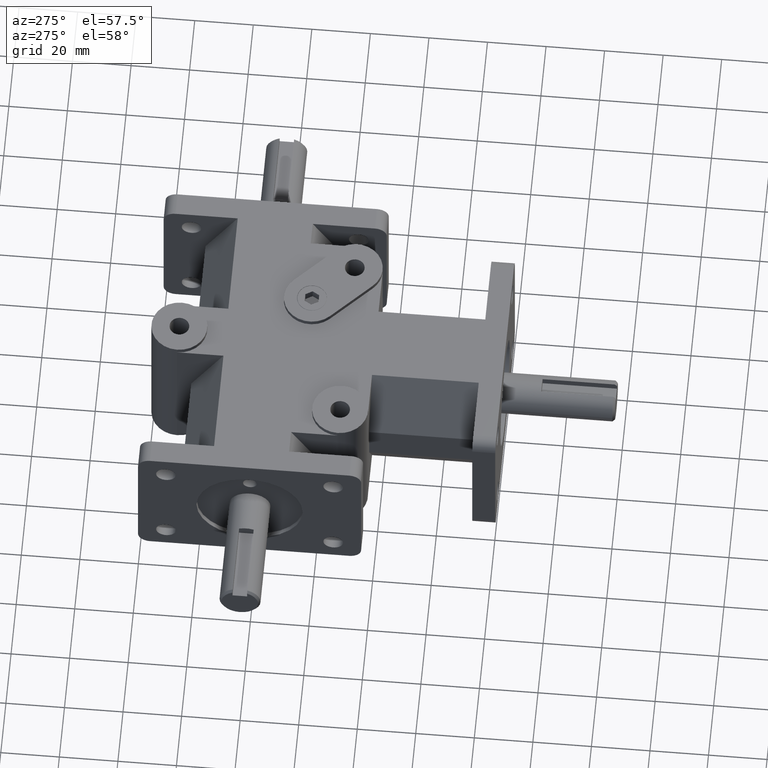
[diagram: clean part render]
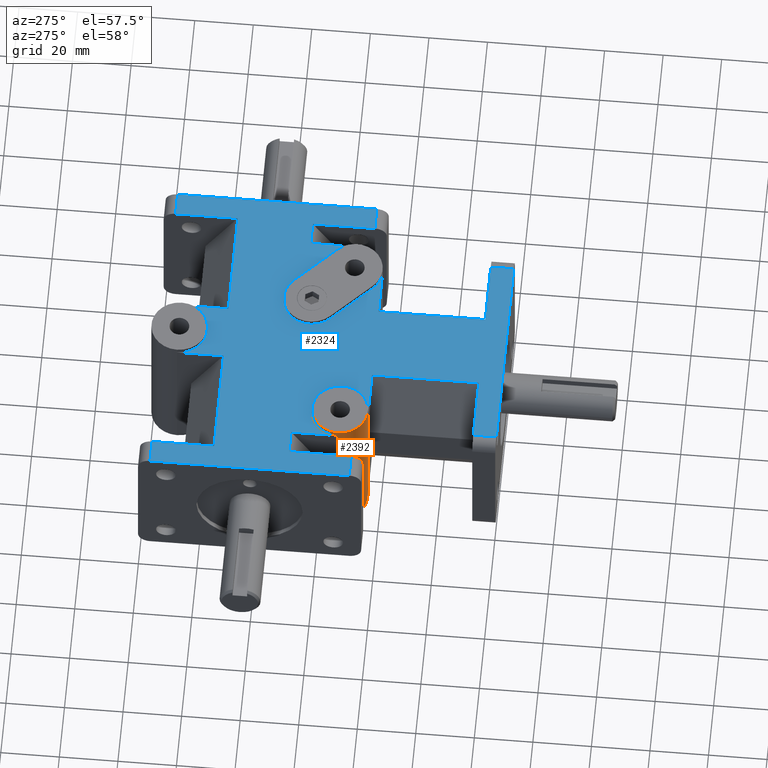
[diagram: same view with the hole feature highlighted: cylindrical wall and planar end face, labeled with their STEP entity ids]
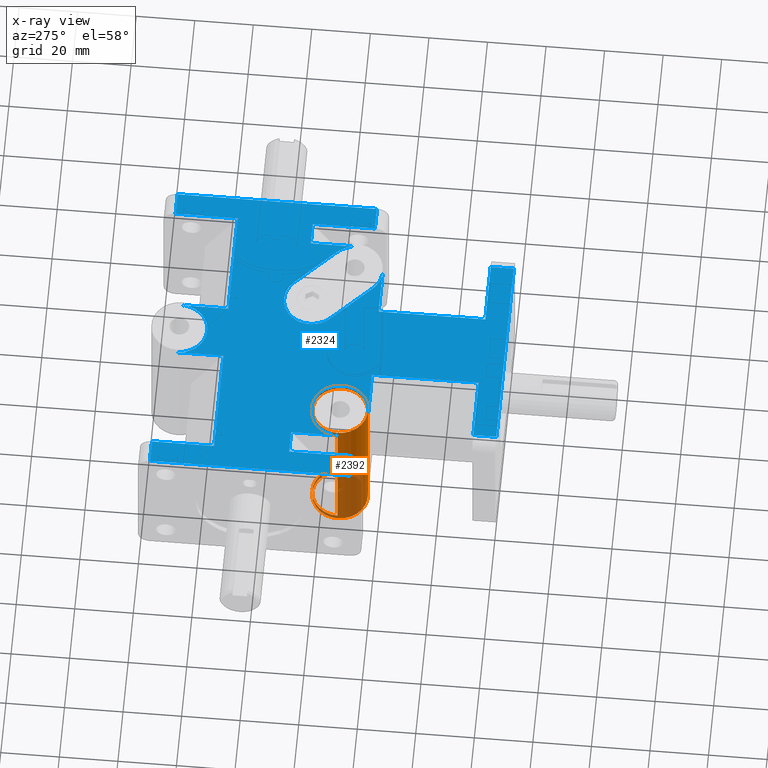
[diagram: x-ray of the same camera — body ghosted, the hole faces saturated]
A machine part, auxiliary view. The highlighted faces form one hole feature of diameter 19.05 mm: the cylindrical wall (entity #2392, orange) and its adjacent planar end face (entity #2324, blue) — they share a circular edge in the B-rep.
The next image is the same camera in x-ray (body ghosted, the hole faces saturated) — the bore reads through the body.
Wall:
#273=FACE_OUTER_BOUND('',#441,.T.);
#441=EDGE_LOOP('',(#2184,#2185,#2186,#2187,#2188,#2189,#2190,#2191,#2192,
#2193));
#667=LINE('',#4025,#889);
#668=LINE('',#4027,#890);
#669=LINE('',#4028,#891);
#670=LINE('',#4029,#892);
#889=VECTOR('',#3322,1.);
#890=VECTOR('',#3325,9.525);
#891=VECTOR('',#3326,1.);
#892=VECTOR('',#3327,9.525);
#965=CIRCLE('',#2537,9.525);
#970=CIRCLE('',#2544,9.525);
#998=CIRCLE('',#2616,9.525);
#999=CIRCLE('',#2618,9.525);
#1143=VERTEX_POINT('',#3732);
#1144=VERTEX_POINT('',#3734);
#1151=VERTEX_POINT('',#3754);
#1152=VERTEX_POINT('',#3756);
#1219=VERTEX_POINT('',#3981);
#1220=VERTEX_POINT('',#3984);
#1405=EDGE_CURVE('',#1143,#1144,#965,.T.);
#1417=EDGE_CURVE('',#1151,#1152,#970,.T.);
#1531=EDGE_CURVE('',#1219,#1219,#998,.T.);
#1532=EDGE_CURVE('',#1220,#1220,#999,.T.);
#1550=EDGE_CURVE('',#1143,#1152,#667,.T.);
#1551=EDGE_CURVE('',#1220,#1152,#668,.T.);
#1552=EDGE_CURVE('',#1144,#1151,#669,.T.);
#1553=EDGE_CURVE('',#1143,#1219,#670,.T.);
#2184=ORIENTED_EDGE('',*,*,#1532,.T.);
#2185=ORIENTED_EDGE('',*,*,#1551,.T.);
#2186=ORIENTED_EDGE('',*,*,#1417,.F.);
#2187=ORIENTED_EDGE('',*,*,#1552,.F.);
#2188=ORIENTED_EDGE('',*,*,#1405,.F.);
#2189=ORIENTED_EDGE('',*,*,#1553,.T.);
#2190=ORIENTED_EDGE('',*,*,#1531,.T.);
#2191=ORIENTED_EDGE('',*,*,#1553,.F.);
#2192=ORIENTED_EDGE('',*,*,#1550,.T.);
#2193=ORIENTED_EDGE('',*,*,#1551,.F.);
#2268=CYLINDRICAL_SURFACE('',#2641,9.525);
#2392=ADVANCED_FACE('',(#273),#2268,.T.);
#2537=AXIS2_PLACEMENT_3D('',#3735,#3006,#3007);
#2544=AXIS2_PLACEMENT_3D('',#3757,#3027,#3028);
#2616=AXIS2_PLACEMENT_3D('',#3982,#3257,#3258);
#2618=AXIS2_PLACEMENT_3D('',#3985,#3261,#3262);
#2641=AXIS2_PLACEMENT_3D('',#4026,#3323,#3324);
#3006=DIRECTION('center_axis',(0.,0.,-1.));
#3007=DIRECTION('ref_axis',(1.,0.,0.));
#3027=DIRECTION('center_axis',(0.,0.,1.));
#3028=DIRECTION('ref_axis',(1.,0.,0.));
#3257=DIRECTION('center_axis',(0.,0.,-1.));
#3258=DIRECTION('ref_axis',(1.,0.,0.));
#3261=DIRECTION('center_axis',(0.,0.,1.));
#3262=DIRECTION('ref_axis',(1.,0.,0.));
#3322=DIRECTION('',(0.,0.,-1.));
#3323=DIRECTION('center_axis',(0.,0.,-1.));
#3324=DIRECTION('ref_axis',(1.,0.,0.));
#3325=DIRECTION('',(0.,0.,1.));
#3326=DIRECTION('',(0.,0.,-1.));
#3327=DIRECTION('',(0.,0.,1.));
#3732=CARTESIAN_POINT('',(-38.227,53.848,25.4));
#3734=CARTESIAN_POINT('',(-28.702,44.323,25.4));
#3735=CARTESIAN_POINT('Origin',(-28.702,53.848,25.4));
#3754=CARTESIAN_POINT('',(-28.702,44.323,-25.4));
#3756=CARTESIAN_POINT('',(-38.227,53.848,-25.4));
#3757=CARTESIAN_POINT('Origin',(-28.702,53.848,-25.4));
#3981=CARTESIAN_POINT('',(-38.227,53.848,27.051));
#3982=CARTESIAN_POINT('Origin',(-28.702,53.848,27.051));
#3984=CARTESIAN_POINT('',(-38.227,53.848,-27.051));
#3985=CARTESIAN_POINT('Origin',(-28.702,53.848,-27.051));
#4025=CARTESIAN_POINT('',(-38.227,53.848,0.));
#4026=CARTESIAN_POINT('Origin',(-28.702,53.848,0.));
#4027=CARTESIAN_POINT('',(-38.227,53.848,0.));
#4028=CARTESIAN_POINT('',(-28.702,44.323,0.));
#4029=CARTESIAN_POINT('',(-38.227,53.848,0.));
End face:
#97=PLANE('',#2532);
#205=FACE_OUTER_BOUND('',#351,.T.);
#351=EDGE_LOOP('',(#1804,#1805,#1806,#1807,#1808,#1809,#1810,#1811,#1812,
#1813,#1814,#1815,#1816,#1817,#1818,#1819,#1820,#1821,#1822,#1823,#1824,
#1825,#1826,#1827,#1828,#1829,#1830,#1831,#1832,#1833,#1834,#1835,#1836,
#1837));
#494=LINE('',#3533,#716);
#501=LINE('',#3563,#723);
#502=LINE('',#3569,#724);
#509=LINE('',#3599,#731);
#512=LINE('',#3614,#734);
#515=LINE('',#3626,#737);
#518=LINE('',#3638,#740);
#528=LINE('',#3660,#750);
#530=LINE('',#3668,#752);
#540=LINE('',#3690,#762);
#542=LINE('',#3697,#764);
#543=LINE('',#3699,#765);
#544=LINE('',#3701,#766);
#545=LINE('',#3705,#767);
#546=LINE('',#3709,#768);
#547=LINE('',#3713,#769);
#548=LINE('',#3714,#770);
#549=LINE('',#3715,#771);
#550=LINE('',#3717,#772);
#551=LINE('',#3719,#773);
#552=LINE('',#3723,#774);
#553=LINE('',#3725,#775);
#554=LINE('',#3726,#776);
#555=LINE('',#3727,#777);
#556=LINE('',#3729,#778);
#557=LINE('',#3731,#779);
#558=LINE('',#3733,#780);
#559=LINE('',#3737,#781);
#560=LINE('',#3738,#782);
#716=VECTOR('',#2839,1.);
#723=VECTOR('',#2866,1.);
#724=VECTOR('',#2871,1.);
#731=VECTOR('',#2898,1.);
#734=VECTOR('',#2911,1.);
#737=VECTOR('',#2922,1.);
#740=VECTOR('',#2933,1.);
#750=VECTOR('',#2949,1.);
#752=VECTOR('',#2957,1.);
#762=VECTOR('',#2973,1.);
#764=VECTOR('',#2981,1.);
#765=VECTOR('',#2982,1.);
#766=VECTOR('',#2983,1.);
#767=VECTOR('',#2986,1.);
#768=VECTOR('',#2989,1.);
#769=VECTOR('',#2992,1.);
#770=VECTOR('',#2993,1.);
#771=VECTOR('',#2994,1.);
#772=VECTOR('',#2995,1.);
#773=VECTOR('',#2996,1.);
#774=VECTOR('',#2999,1.);
#775=VECTOR('',#3000,1.);
#776=VECTOR('',#3001,1.);
#777=VECTOR('',#3002,1.);
#778=VECTOR('',#3003,1.);
#779=VECTOR('',#3004,1.);
#780=VECTOR('',#3005,1.);
#781=VECTOR('',#3008,1.);
#782=VECTOR('',#3009,1.);
#961=CIRCLE('',#2533,9.525);
#962=CIRCLE('',#2534,9.525);
#963=CIRCLE('',#2535,9.525);
#964=CIRCLE('',#2536,9.525);
#965=CIRCLE('',#2537,9.525);
#1057=VERTEX_POINT('',#3530);
#1058=VERTEX_POINT('',#3532);
#1068=VERTEX_POINT('',#3556);
#1071=VERTEX_POINT('',#3561);
#1073=VERTEX_POINT('',#3566);
#1074=VERTEX_POINT('',#3568);
#1084=VERTEX_POINT('',#3592);
#1087=VERTEX_POINT('',#3597);
#1093=VERTEX_POINT('',#3611);
#1094=VERTEX_POINT('',#3613);
#1096=VERTEX_POINT('',#3619);
#1099=VERTEX_POINT('',#3624);
#1104=VERTEX_POINT('',#3637);
#1113=VERTEX_POINT('',#3658);
#1116=VERTEX_POINT('',#3667);
#1125=VERTEX_POINT('',#3688);
#1128=VERTEX_POINT('',#3698);
#1129=VERTEX_POINT('',#3700);
#1130=VERTEX_POINT('',#3702);
#1131=VERTEX_POINT('',#3704);
#1132=VERTEX_POINT('',#3706);
#1133=VERTEX_POINT('',#3708);
#1134=VERTEX_POINT('',#3710);
#1135=VERTEX_POINT('',#3712);
#1136=VERTEX_POINT('',#3716);
#1137=VERTEX_POINT('',#3718);
#1138=VERTEX_POINT('',#3720);
#1139=VERTEX_POINT('',#3722);
#1140=VERTEX_POINT('',#3724);
#1141=VERTEX_POINT('',#3728);
#1142=VERTEX_POINT('',#3730);
#1143=VERTEX_POINT('',#3732);
#1144=VERTEX_POINT('',#3734);
#1145=VERTEX_POINT('',#3736);
#1305=EDGE_CURVE('',#1057,#1058,#494,.T.);
#1319=EDGE_CURVE('',#1071,#1068,#501,.T.);
#1321=EDGE_CURVE('',#1073,#1074,#502,.T.);
#1335=EDGE_CURVE('',#1087,#1084,#509,.T.);
#1341=EDGE_CURVE('',#1093,#1094,#512,.T.);
#1347=EDGE_CURVE('',#1099,#1096,#515,.T.);
#1352=EDGE_CURVE('',#1058,#1104,#518,.T.);
#1364=EDGE_CURVE('',#1113,#1071,#528,.T.);
#1368=EDGE_CURVE('',#1074,#1116,#530,.T.);
#1380=EDGE_CURVE('',#1125,#1087,#540,.T.);
#1384=EDGE_CURVE('',#1068,#1057,#542,.T.);
#1385=EDGE_CURVE('',#1128,#1113,#543,.T.);
#1386=EDGE_CURVE('',#1129,#1128,#544,.T.);
#1387=EDGE_CURVE('',#1129,#1130,#961,.T.);
#1388=EDGE_CURVE('',#1130,#1131,#545,.T.);
#1389=EDGE_CURVE('',#1131,#1132,#962,.T.);
#1390=EDGE_CURVE('',#1132,#1133,#546,.T.);
#1391=EDGE_CURVE('',#1133,#1134,#963,.T.);
#1392=EDGE_CURVE('',#1135,#1134,#547,.T.);
#1393=EDGE_CURVE('',#1116,#1135,#548,.T.);
#1394=EDGE_CURVE('',#1084,#1073,#549,.T.);
#1395=EDGE_CURVE('',#1136,#1125,#550,.T.);
#1396=EDGE_CURVE('',#1137,#1136,#551,.T.);
#1397=EDGE_CURVE('',#1137,#1138,#964,.T.);
#1398=EDGE_CURVE('',#1139,#1138,#552,.T.);
#1399=EDGE_CURVE('',#1140,#1139,#553,.T.);
#1400=EDGE_CURVE('',#1094,#1140,#554,.T.);
#1401=EDGE_CURVE('',#1096,#1093,#555,.T.);
#1402=EDGE_CURVE('',#1141,#1099,#556,.T.);
#1403=EDGE_CURVE('',#1142,#1141,#557,.T.);
#1404=EDGE_CURVE('',#1143,#1142,#558,.T.);
#1405=EDGE_CURVE('',#1143,#1144,#965,.T.);
#1406=EDGE_CURVE('',#1145,#1144,#559,.T.);
#1407=EDGE_CURVE('',#1104,#1145,#560,.T.);
#1804=ORIENTED_EDGE('',*,*,#1305,.F.);
#1805=ORIENTED_EDGE('',*,*,#1384,.F.);
#1806=ORIENTED_EDGE('',*,*,#1319,.F.);
#1807=ORIENTED_EDGE('',*,*,#1364,.F.);
#1808=ORIENTED_EDGE('',*,*,#1385,.F.);
#1809=ORIENTED_EDGE('',*,*,#1386,.F.);
#1810=ORIENTED_EDGE('',*,*,#1387,.T.);
#1811=ORIENTED_EDGE('',*,*,#1388,.T.);
#1812=ORIENTED_EDGE('',*,*,#1389,.T.);
#1813=ORIENTED_EDGE('',*,*,#1390,.T.);
#1814=ORIENTED_EDGE('',*,*,#1391,.T.);
#1815=ORIENTED_EDGE('',*,*,#1392,.F.);
#1816=ORIENTED_EDGE('',*,*,#1393,.F.);
#1817=ORIENTED_EDGE('',*,*,#1368,.F.);
#1818=ORIENTED_EDGE('',*,*,#1321,.F.);
#1819=ORIENTED_EDGE('',*,*,#1394,.F.);
#1820=ORIENTED_EDGE('',*,*,#1335,.F.);
#1821=ORIENTED_EDGE('',*,*,#1380,.F.);
#1822=ORIENTED_EDGE('',*,*,#1395,.F.);
#1823=ORIENTED_EDGE('',*,*,#1396,.F.);
#1824=ORIENTED_EDGE('',*,*,#1397,.T.);
#1825=ORIENTED_EDGE('',*,*,#1398,.F.);
#1826=ORIENTED_EDGE('',*,*,#1399,.F.);
#1827=ORIENTED_EDGE('',*,*,#1400,.F.);
#1828=ORIENTED_EDGE('',*,*,#1341,.F.);
#1829=ORIENTED_EDGE('',*,*,#1401,.F.);
#1830=ORIENTED_EDGE('',*,*,#1347,.F.);
#1831=ORIENTED_EDGE('',*,*,#1402,.F.);
#1832=ORIENTED_EDGE('',*,*,#1403,.F.);
#1833=ORIENTED_EDGE('',*,*,#1404,.F.);
#1834=ORIENTED_EDGE('',*,*,#1405,.T.);
#1835=ORIENTED_EDGE('',*,*,#1406,.F.);
#1836=ORIENTED_EDGE('',*,*,#1407,.F.);
#1837=ORIENTED_EDGE('',*,*,#1352,.F.);
#2324=ADVANCED_FACE('',(#205),#97,.T.);
#2532=AXIS2_PLACEMENT_3D('',#3696,#2979,#2980);
#2533=AXIS2_PLACEMENT_3D('',#3703,#2984,#2985);
#2534=AXIS2_PLACEMENT_3D('',#3707,#2987,#2988);
#2535=AXIS2_PLACEMENT_3D('',#3711,#2990,#2991);
#2536=AXIS2_PLACEMENT_3D('',#3721,#2997,#2998);
#2537=AXIS2_PLACEMENT_3D('',#3735,#3006,#3007);
#2839=DIRECTION('',(0.,1.,0.));
#2866=DIRECTION('',(0.,-1.,0.));
#2871=DIRECTION('',(-1.,0.,0.));
#2898=DIRECTION('',(1.,0.,0.));
#2911=DIRECTION('',(1.,0.,0.));
#2922=DIRECTION('',(-1.,0.,0.));
#2933=DIRECTION('',(1.,0.,0.));
#2949=DIRECTION('',(1.,0.,0.));
#2957=DIRECTION('',(0.,1.,0.));
#2973=DIRECTION('',(0.,1.,0.));
#2979=DIRECTION('center_axis',(0.,0.,1.));
#2980=DIRECTION('ref_axis',(-1.,0.,0.));
#2981=DIRECTION('',(-1.,0.,0.));
#2982=DIRECTION('',(0.,-1.,0.));
#2983=DIRECTION('',(-1.,0.,0.));
#2984=DIRECTION('center_axis',(0.,0.,-1.));
#2985=DIRECTION('ref_axis',(1.,0.,0.));
#2986=DIRECTION('',(-0.707106781186547,0.707106781186548,0.));
#2987=DIRECTION('center_axis',(0.,0.,-1.));
#2988=DIRECTION('ref_axis',(1.,0.,0.));
#2989=DIRECTION('',(0.707106781186548,-0.707106781186547,0.));
#2990=DIRECTION('center_axis',(0.,0.,-1.));
#2991=DIRECTION('ref_axis',(1.,0.,0.));
#2992=DIRECTION('',(0.,-1.,0.));
#2993=DIRECTION('',(-1.,0.,0.));
#2994=DIRECTION('',(0.,-1.,0.));
#2995=DIRECTION('',(1.,0.,0.));
#2996=DIRECTION('',(0.,-1.,0.));
#2997=DIRECTION('center_axis',(0.,0.,-1.));
#2998=DIRECTION('ref_axis',(1.,0.,0.));
#2999=DIRECTION('',(0.,1.,0.));
#3000=DIRECTION('',(1.,0.,0.));
#3001=DIRECTION('',(0.,-1.,0.));
#3002=DIRECTION('',(0.,1.,0.));
#3003=DIRECTION('',(0.,-1.,0.));
#3004=DIRECTION('',(-1.,0.,0.));
#3005=DIRECTION('',(0.,1.,0.));
#3006=DIRECTION('center_axis',(0.,0.,-1.));
#3007=DIRECTION('ref_axis',(1.,0.,0.));
#3008=DIRECTION('',(-1.,0.,0.));
#3009=DIRECTION('',(0.,1.,0.));
#3530=CARTESIAN_POINT('',(-34.036,0.,25.4));
#3532=CARTESIAN_POINT('',(-34.036,7.874,25.4));
#3533=CARTESIAN_POINT('',(-34.036,34.7653328121895,25.4));
#3556=CARTESIAN_POINT('',(34.036,0.,25.4));
#3561=CARTESIAN_POINT('',(34.036,7.874,25.4));
#3563=CARTESIAN_POINT('',(34.036,30.8283328121895,25.4));
#3566=CARTESIAN_POINT('',(53.975,48.514,25.4));
#3568=CARTESIAN_POINT('',(46.101,48.514,25.4));
#3569=CARTESIAN_POINT('',(23.0505,48.514,25.4));
#3592=CARTESIAN_POINT('',(53.975,116.586,25.4));
#3597=CARTESIAN_POINT('',(46.101,116.586,25.4));
#3599=CARTESIAN_POINT('',(26.9875,116.586,25.4));
#3611=CARTESIAN_POINT('',(-53.975,116.586,25.4));
#3613=CARTESIAN_POINT('',(-46.101,116.586,25.4));
#3614=CARTESIAN_POINT('',(-23.0505,116.586,25.4));
#3619=CARTESIAN_POINT('',(-53.975,48.514,25.4));
#3624=CARTESIAN_POINT('',(-46.101,48.514,25.4));
#3626=CARTESIAN_POINT('',(-26.9875,48.514,25.4));
#3637=CARTESIAN_POINT('',(-12.8139698,7.874,25.4));
#3638=CARTESIAN_POINT('',(-11.90625,7.874,25.4));
#3658=CARTESIAN_POINT('',(12.8139698,7.874,25.4));
#3660=CARTESIAN_POINT('',(23.8125,7.874,25.4));
#3667=CARTESIAN_POINT('',(46.101,69.7360302,25.4));
#3668=CARTESIAN_POINT('',(46.101,60.1970828121895,25.4));
#3688=CARTESIAN_POINT('',(46.101,95.3639698,25.4));
#3690=CARTESIAN_POINT('',(46.101,106.3625,25.4));
#3696=CARTESIAN_POINT('Origin',(6.16867668057353E-16,61.6566656243791,25.4));
#3697=CARTESIAN_POINT('',(-38.1,0.,25.4));
#3698=CARTESIAN_POINT('',(12.8139698,44.323,25.4));
#3699=CARTESIAN_POINT('',(12.8139698,34.7653328121895,25.4));
#3700=CARTESIAN_POINT('',(28.702,44.323,25.4));
#3701=CARTESIAN_POINT('',(11.90625,44.323,25.4));
#3702=CARTESIAN_POINT('',(21.9668079091981,47.1128079091982,25.4));
#3703=CARTESIAN_POINT('Origin',(28.702,53.848,25.4));
#3704=CARTESIAN_POINT('',(8.50480790919812,60.5748079091981,25.4));
#3705=CARTESIAN_POINT('',(12.8391415031033,56.2404743152929,25.4));
#3706=CARTESIAN_POINT('',(21.9751920908018,74.0451920908019,25.4));
#3707=CARTESIAN_POINT('Origin',(15.24,67.31,25.4));
#3708=CARTESIAN_POINT('',(35.4371920908019,60.5831920908019,25.4));
#3709=CARTESIAN_POINT('',(19.5785256847071,76.4418584968966,25.4));
#3710=CARTESIAN_POINT('',(38.227,53.848,25.4));
#3711=CARTESIAN_POINT('Origin',(28.702,53.848,25.4));
#3712=CARTESIAN_POINT('',(38.227,69.7360302,25.4));
#3713=CARTESIAN_POINT('',(38.227,53.848,25.4));
#3714=CARTESIAN_POINT('',(19.1135,69.7360302,25.4));
#3715=CARTESIAN_POINT('',(53.975,44.45,25.4));
#3716=CARTESIAN_POINT('',(9.525,95.3639698,25.4));
#3717=CARTESIAN_POINT('',(23.0505,95.3639698,25.4));
#3718=CARTESIAN_POINT('',(9.525,111.252,25.4));
#3719=CARTESIAN_POINT('',(9.525,84.0095828121895,25.4));
#3720=CARTESIAN_POINT('',(-9.525,111.252,25.4));
#3721=CARTESIAN_POINT('Origin',(0.,111.252,25.4));
#3722=CARTESIAN_POINT('',(-9.525,95.3639698,25.4));
#3723=CARTESIAN_POINT('',(-9.525,106.3625,25.4));
#3724=CARTESIAN_POINT('',(-46.101,95.3639698,25.4));
#3725=CARTESIAN_POINT('',(-4.7625,95.3639698,25.4));
#3726=CARTESIAN_POINT('',(-46.101,84.0095828121895,25.4));
#3727=CARTESIAN_POINT('',(-53.975,44.45,25.4));
#3728=CARTESIAN_POINT('',(-46.101,69.7360302,25.4));
#3729=CARTESIAN_POINT('',(-46.101,44.45,25.4));
#3730=CARTESIAN_POINT('',(-38.227,69.7360302,25.4));
#3731=CARTESIAN_POINT('',(-23.0505,69.7360302,25.4));
#3732=CARTESIAN_POINT('',(-38.227,53.848,25.4));
#3733=CARTESIAN_POINT('',(-38.227,60.1970828121895,25.4));
#3734=CARTESIAN_POINT('',(-28.702,44.323,25.4));
#3735=CARTESIAN_POINT('Origin',(-28.702,53.848,25.4));
#3736=CARTESIAN_POINT('',(-12.8139698,44.323,25.4));
#3737=CARTESIAN_POINT('',(-23.8125,44.323,25.4));
#3738=CARTESIAN_POINT('',(-12.8139698,52.9898328121895,25.4));